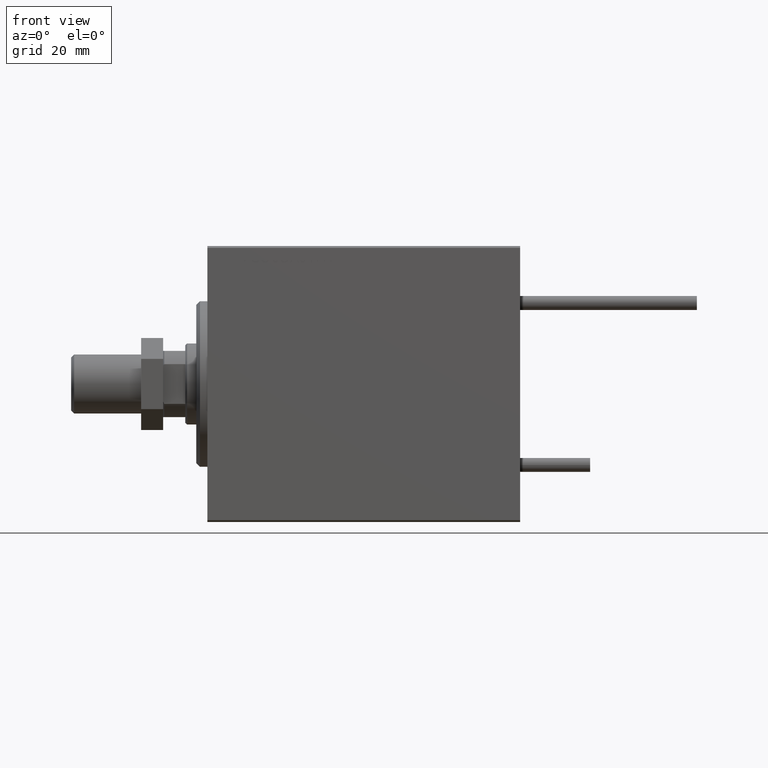
[diagram: clean part render]
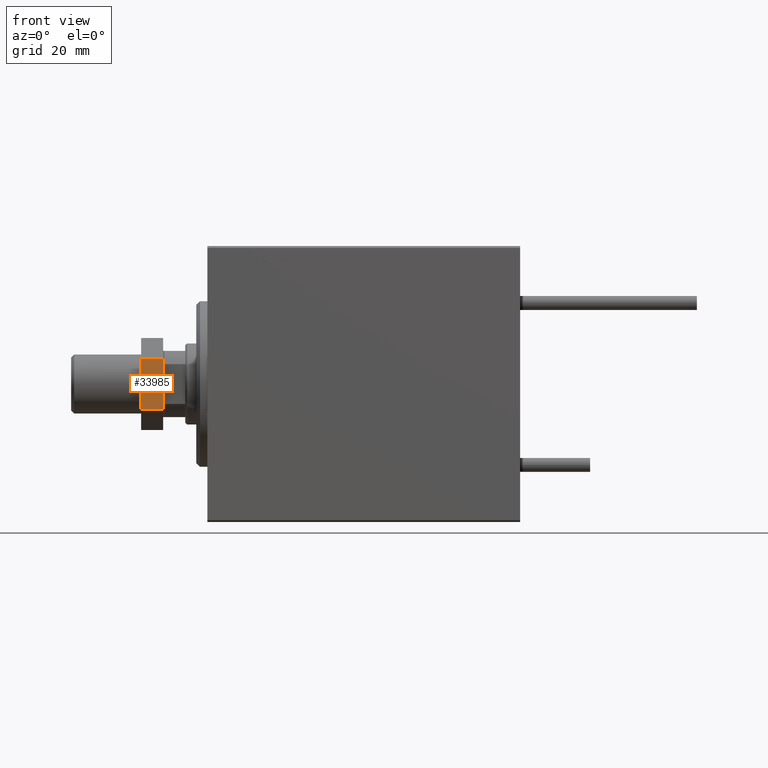
[diagram: same view with one face highlighted and labeled with its STEP entity id]
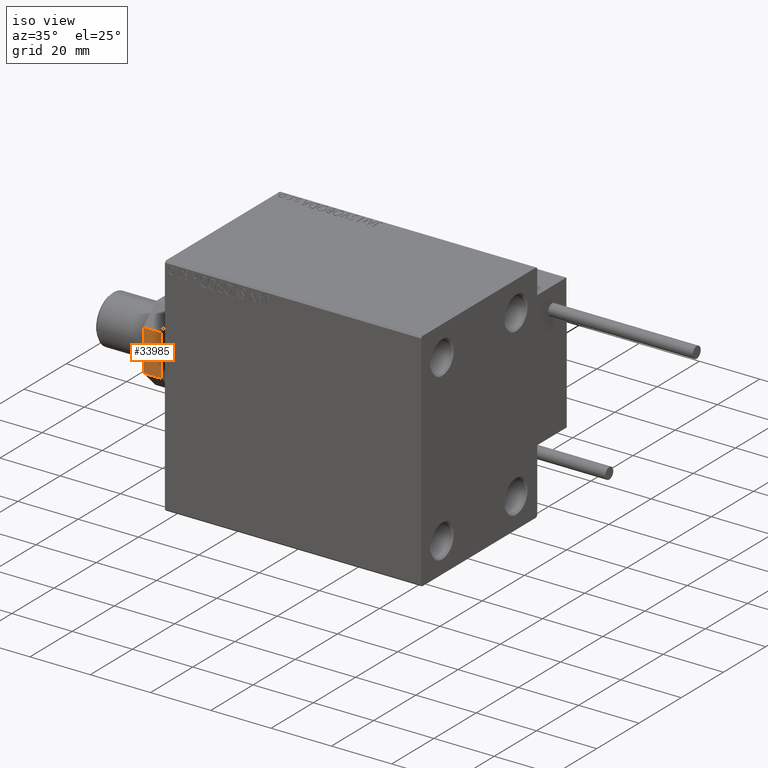
[diagram: same view with one face highlighted and labeled with its STEP entity id]
A machine part, front view. The second image highlights one B-rep face of the part: STEP entity #33985.
A second angle (iso view) of the same face is appended — the face is thin or edge-on in the first view.
In plain terms, the highlighted planar face has unit normal (-0, 1, -0).
Its self-contained STEP definition (entity closure, byte-faithful):
#1119 = VECTOR ( 'NONE', #33757, 1000.000000000000000 ) ;
#4102 = VECTOR ( 'NONE', #22524, 1000.000000000000000 ) ;
#7716 = CARTESIAN_POINT ( 'NONE',  ( 6.839999999999998970, 4.814824860968089633E-32, 0.000000000000000000 ) ) ;
#10250 = ORIENTED_EDGE ( 'NONE', *, *, #43153, .T. ) ;
#11974 = CARTESIAN_POINT ( 'NONE',  ( -6.840000000000012292, 4.814824860968089633E-32, 0.000000000000000000 ) ) ;
#12434 = LINE ( 'NONE', #28813, #17758 ) ;
#12745 = DIRECTION ( 'NONE',  ( 0.000000000000000000, -0.000000000000000000, 1.000000000000000000 ) ) ;
#13922 = EDGE_CURVE ( 'NONE', #31367, #24121, #45962, .T. ) ;
#14131 = CARTESIAN_POINT ( 'NONE',  ( -12.50000000000000355, 4.814824860968089633E-32, 6.000000000000000000 ) ) ;
#14220 = EDGE_CURVE ( 'NONE', #31367, #25663, #34155, .T. ) ;
#14387 = DIRECTION ( 'NONE',  ( 1.000000000000000000, 0.000000000000000000, 0.000000000000000000 ) ) ;
#17758 = VECTOR ( 'NONE', #44694, 1000.000000000000000 ) ;
#20974 = CARTESIAN_POINT ( 'NONE',  ( -6.840000000000012292, 4.814824860968089633E-32, 6.000000000000000000 ) ) ;
#21584 = PLANE ( 'NONE',  #37958 ) ;
#22524 = DIRECTION ( 'NONE',  ( 0.000000000000000000, 0.000000000000000000, -1.000000000000000000 ) ) ;
#22749 = EDGE_LOOP ( 'NONE', ( #45863, #30113, #49043, #10250 ) ) ;
#24121 = VERTEX_POINT ( 'NONE', #11974 ) ;
#24897 = VECTOR ( 'NONE', #14387, 1000.000000000000000 ) ;
#25663 = VERTEX_POINT ( 'NONE', #49562 ) ;
#28813 = CARTESIAN_POINT ( 'NONE',  ( 6.839999999999998970, 4.814824860968089633E-32, 6.000000000000000000 ) ) ;
#30113 = ORIENTED_EDGE ( 'NONE', *, *, #13922, .T. ) ;
#31367 = VERTEX_POINT ( 'NONE', #20974 ) ;
#32782 = FACE_OUTER_BOUND ( 'NONE', #22749, .T. ) ;
#33317 = VERTEX_POINT ( 'NONE', #7716 ) ;
#33502 = LINE ( 'NONE', #45469, #1119 ) ;
#33757 = DIRECTION ( 'NONE',  ( 1.000000000000000000, 0.000000000000000000, 0.000000000000000000 ) ) ;
#33985 = ADVANCED_FACE ( 'NONE', ( #32782 ), #21584, .F. ) ;
#34155 = LINE ( 'NONE', #14131, #24897 ) ;
#37958 = AXIS2_PLACEMENT_3D ( 'NONE', #45012, #45274, #12745 ) ;
#38397 = CARTESIAN_POINT ( 'NONE',  ( -6.840000000000012292, 4.814824860968089633E-32, 6.000000000000000000 ) ) ;
#43153 = EDGE_CURVE ( 'NONE', #33317, #25663, #12434, .T. ) ;
#44694 = DIRECTION ( 'NONE',  ( 0.000000000000000000, 0.000000000000000000, 1.000000000000000000 ) ) ;
#45012 = CARTESIAN_POINT ( 'NONE',  ( -12.50000000000000355, 4.814824860968089633E-32, 6.000000000000000000 ) ) ;
#45274 = DIRECTION ( 'NONE',  ( 0.000000000000000000, 1.000000000000000000, 0.000000000000000000 ) ) ;
#45469 = CARTESIAN_POINT ( 'NONE',  ( -12.50000000000000355, 4.814824860968089633E-32, 0.000000000000000000 ) ) ;
#45863 = ORIENTED_EDGE ( 'NONE', *, *, #14220, .F. ) ;
#45962 = LINE ( 'NONE', #38397, #4102 ) ;
#47381 = EDGE_CURVE ( 'NONE', #24121, #33317, #33502, .T. ) ;
#49043 = ORIENTED_EDGE ( 'NONE', *, *, #47381, .T. ) ;
#49562 = CARTESIAN_POINT ( 'NONE',  ( 6.839999999999998970, 4.814824860968089633E-32, 6.000000000000000000 ) ) ;